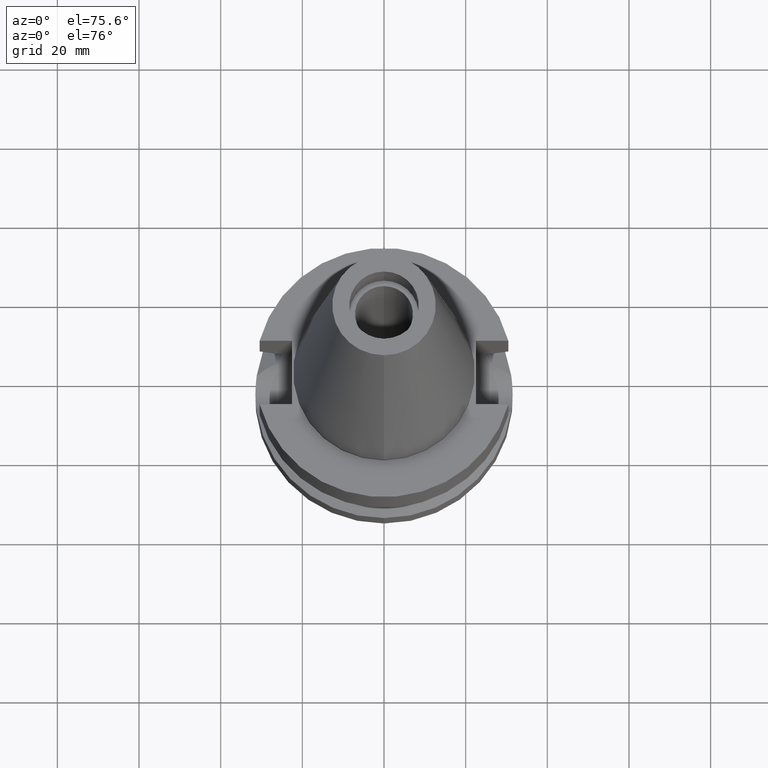
[diagram: clean part render]
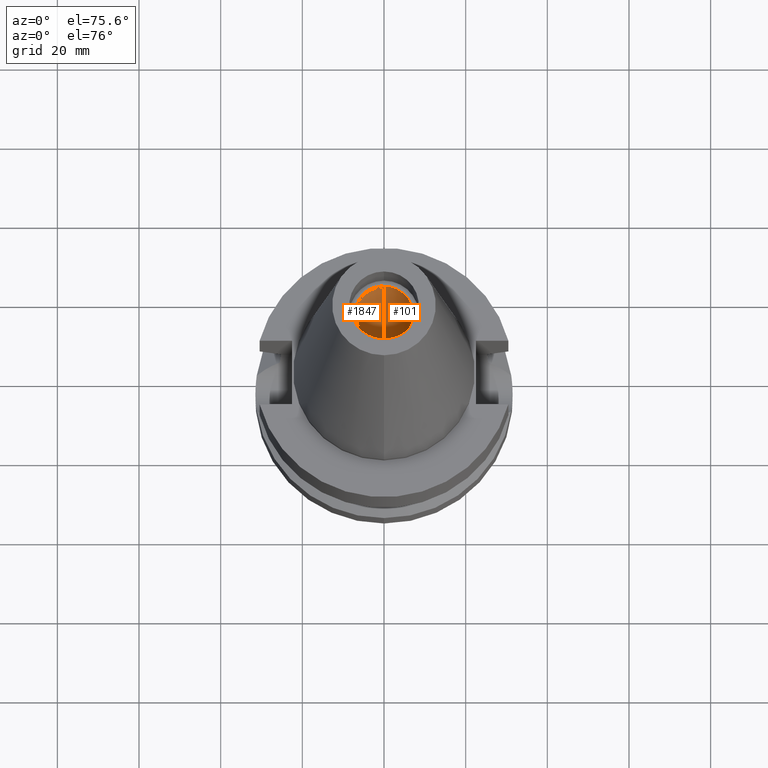
[diagram: same view with one multi-face feature highlighted, each face labeled with its STEP entity id]
A machine part, auxiliary view. The highlighted faces form ONE feature: a constant-radius fillet chain: 2 tangent blend faces with common blend radius 7.1 mm. The faces share edges in the B-rep.
Their STEP definitions:
[1] entity #1847 (Cylinder):
#109 = ORIENTED_EDGE ( 'NONE', *, *, #2205, .T. ) ;
#167 = DIRECTION ( 'NONE',  ( 0.0000000000000000000, 1.000000000000000000, 0.0000000000000000000 ) ) ;
#190 = CARTESIAN_POINT ( 'NONE',  ( 0.0000000000000000000, -7.100000000000000533, 0.0000000000000000000 ) ) ;
#238 = VERTEX_POINT ( 'NONE', #1183 ) ;
#253 = EDGE_CURVE ( 'NONE', #238, #2139, #697, .T. ) ;
#320 = VERTEX_POINT ( 'NONE', #1009 ) ;
#401 = ORIENTED_EDGE ( 'NONE', *, *, #253, .T. ) ;
#405 = CYLINDRICAL_SURFACE ( 'NONE', #2131, 7.100000000000000533 ) ;
#461 = AXIS2_PLACEMENT_3D ( 'NONE', #1082, #2749, #1572 ) ;
#697 = LINE ( 'NONE', #1879, #720 ) ;
#720 = VECTOR ( 'NONE', #2156, 1000.000000000000000 ) ;
#913 = FACE_OUTER_BOUND ( 'NONE', #2120, .T. ) ;
#1009 = CARTESIAN_POINT ( 'NONE',  ( 0.0000000000000000000, -7.100000000000000533, 56.39999999999999858 ) ) ;
#1082 = CARTESIAN_POINT ( 'NONE',  ( 0.0000000000000000000, 0.0000000000000000000, 0.0000000000000000000 ) ) ;
#1137 = DIRECTION ( 'NONE',  ( 0.0000000000000000000, 0.0000000000000000000, 1.000000000000000000 ) ) ;
#1151 = DIRECTION ( 'NONE',  ( 0.0000000000000000000, 0.0000000000000000000, -1.000000000000000000 ) ) ;
#1183 = CARTESIAN_POINT ( 'NONE',  ( 0.0000000000000000000, 7.100000000000000533, 0.0000000000000000000 ) ) ;
#1437 = CARTESIAN_POINT ( 'NONE',  ( 0.0000000000000000000, -7.100000000000000533, 0.0000000000000000000 ) ) ;
#1493 = LINE ( 'NONE', #1437, #2724 ) ;
#1572 = DIRECTION ( 'NONE',  ( 0.0000000000000000000, -1.000000000000000000, 0.0000000000000000000 ) ) ;
#1720 = CIRCLE ( 'NONE', #2631, 7.100000000000000533 ) ;
#1839 = EDGE_CURVE ( 'NONE', #2139, #320, #1720, .T. ) ;
#1847 = ADVANCED_FACE ( 'NONE', ( #913 ), #405, .F. ) ;
#1879 = CARTESIAN_POINT ( 'NONE',  ( 0.0000000000000000000, 7.100000000000000533, 0.0000000000000000000 ) ) ;
#2098 = CARTESIAN_POINT ( 'NONE',  ( 0.0000000000000000000, 0.0000000000000000000, 0.0000000000000000000 ) ) ;
#2120 = EDGE_LOOP ( 'NONE', ( #2572, #2314, #109, #401 ) ) ;
#2131 = AXIS2_PLACEMENT_3D ( 'NONE', #2098, #1151, #2341 ) ;
#2137 = EDGE_CURVE ( 'NONE', #2956, #320, #1493, .T. ) ;
#2139 = VERTEX_POINT ( 'NONE', #2388 ) ;
#2156 = DIRECTION ( 'NONE',  ( 0.0000000000000000000, 0.0000000000000000000, 1.000000000000000000 ) ) ;
#2179 = CIRCLE ( 'NONE', #461, 7.100000000000000533 ) ;
#2205 = EDGE_CURVE ( 'NONE', #2956, #238, #2179, .T. ) ;
#2314 = ORIENTED_EDGE ( 'NONE', *, *, #2137, .F. ) ;
#2341 = DIRECTION ( 'NONE',  ( 0.0000000000000000000, -1.000000000000000000, 0.0000000000000000000 ) ) ;
#2373 = CARTESIAN_POINT ( 'NONE',  ( 0.0000000000000000000, 0.0000000000000000000, 56.39999999999999858 ) ) ;
#2388 = CARTESIAN_POINT ( 'NONE',  ( 0.0000000000000000000, 7.100000000000000533, 56.39999999999999858 ) ) ;
#2572 = ORIENTED_EDGE ( 'NONE', *, *, #1839, .T. ) ;
#2631 = AXIS2_PLACEMENT_3D ( 'NONE', #2373, #1137, #167 ) ;
#2724 = VECTOR ( 'NONE', #2893, 1000.000000000000000 ) ;
#2749 = DIRECTION ( 'NONE',  ( 0.0000000000000000000, 0.0000000000000000000, -1.000000000000000000 ) ) ;
#2893 = DIRECTION ( 'NONE',  ( 0.0000000000000000000, 0.0000000000000000000, 1.000000000000000000 ) ) ;
#2956 = VERTEX_POINT ( 'NONE', #190 ) ;
[2] entity #101 (Cylinder):
#101 = ADVANCED_FACE ( 'NONE', ( #610 ), #135, .F. ) ;
#104 = AXIS2_PLACEMENT_3D ( 'NONE', #2037, #1800, #2344 ) ;
#135 = CYLINDRICAL_SURFACE ( 'NONE', #104, 7.100000000000000533 ) ;
#175 = EDGE_CURVE ( 'NONE', #320, #2139, #2327, .T. ) ;
#190 = CARTESIAN_POINT ( 'NONE',  ( 0.0000000000000000000, -7.100000000000000533, 0.0000000000000000000 ) ) ;
#238 = VERTEX_POINT ( 'NONE', #1183 ) ;
#253 = EDGE_CURVE ( 'NONE', #238, #2139, #697, .T. ) ;
#320 = VERTEX_POINT ( 'NONE', #1009 ) ;
#393 = DIRECTION ( 'NONE',  ( 0.0000000000000000000, 0.0000000000000000000, 1.000000000000000000 ) ) ;
#610 = FACE_OUTER_BOUND ( 'NONE', #2376, .T. ) ;
#697 = LINE ( 'NONE', #1879, #720 ) ;
#720 = VECTOR ( 'NONE', #2156, 1000.000000000000000 ) ;
#744 = DIRECTION ( 'NONE',  ( 0.0000000000000000000, 1.000000000000000000, 0.0000000000000000000 ) ) ;
#986 = CARTESIAN_POINT ( 'NONE',  ( 0.0000000000000000000, 0.0000000000000000000, 0.0000000000000000000 ) ) ;
#1009 = CARTESIAN_POINT ( 'NONE',  ( 0.0000000000000000000, -7.100000000000000533, 56.39999999999999858 ) ) ;
#1014 = EDGE_CURVE ( 'NONE', #238, #2956, #1370, .T. ) ;
#1142 = ORIENTED_EDGE ( 'NONE', *, *, #2137, .T. ) ;
#1183 = CARTESIAN_POINT ( 'NONE',  ( 0.0000000000000000000, 7.100000000000000533, 0.0000000000000000000 ) ) ;
#1370 = CIRCLE ( 'NONE', #2931, 7.100000000000000533 ) ;
#1437 = CARTESIAN_POINT ( 'NONE',  ( 0.0000000000000000000, -7.100000000000000533, 0.0000000000000000000 ) ) ;
#1455 = ORIENTED_EDGE ( 'NONE', *, *, #1014, .T. ) ;
#1487 = ORIENTED_EDGE ( 'NONE', *, *, #253, .F. ) ;
#1493 = LINE ( 'NONE', #1437, #2724 ) ;
#1517 = DIRECTION ( 'NONE',  ( 0.0000000000000000000, 0.0000000000000000000, -1.000000000000000000 ) ) ;
#1706 = ORIENTED_EDGE ( 'NONE', *, *, #175, .T. ) ;
#1800 = DIRECTION ( 'NONE',  ( 0.0000000000000000000, 0.0000000000000000000, -1.000000000000000000 ) ) ;
#1879 = CARTESIAN_POINT ( 'NONE',  ( 0.0000000000000000000, 7.100000000000000533, 0.0000000000000000000 ) ) ;
#2037 = CARTESIAN_POINT ( 'NONE',  ( 0.0000000000000000000, 0.0000000000000000000, 0.0000000000000000000 ) ) ;
#2068 = CARTESIAN_POINT ( 'NONE',  ( 0.0000000000000000000, 0.0000000000000000000, 56.39999999999999858 ) ) ;
#2137 = EDGE_CURVE ( 'NONE', #2956, #320, #1493, .T. ) ;
#2139 = VERTEX_POINT ( 'NONE', #2388 ) ;
#2156 = DIRECTION ( 'NONE',  ( 0.0000000000000000000, 0.0000000000000000000, 1.000000000000000000 ) ) ;
#2327 = CIRCLE ( 'NONE', #2379, 7.100000000000000533 ) ;
#2344 = DIRECTION ( 'NONE',  ( 0.0000000000000000000, -1.000000000000000000, 0.0000000000000000000 ) ) ;
#2376 = EDGE_LOOP ( 'NONE', ( #1455, #1142, #1706, #1487 ) ) ;
#2379 = AXIS2_PLACEMENT_3D ( 'NONE', #2068, #393, #2820 ) ;
#2388 = CARTESIAN_POINT ( 'NONE',  ( 0.0000000000000000000, 7.100000000000000533, 56.39999999999999858 ) ) ;
#2724 = VECTOR ( 'NONE', #2893, 1000.000000000000000 ) ;
#2820 = DIRECTION ( 'NONE',  ( 0.0000000000000000000, -1.000000000000000000, 0.0000000000000000000 ) ) ;
#2893 = DIRECTION ( 'NONE',  ( 0.0000000000000000000, 0.0000000000000000000, 1.000000000000000000 ) ) ;
#2931 = AXIS2_PLACEMENT_3D ( 'NONE', #986, #1517, #744 ) ;
#2956 = VERTEX_POINT ( 'NONE', #190 ) ;